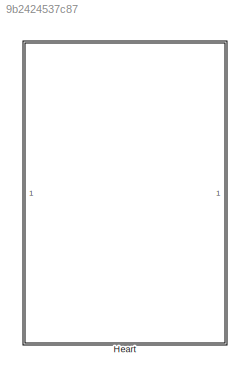
MODEL slx_9b2424537c87
KIND model
CONFIG AbsTol = auto
CONFIG EnableMultiTasking = off
CONFIG FixedStep = auto
CONFIG MaxStep = auto
CONFIG MinStep = auto
CONFIG RelTol = 1e-3
CONFIG SampleTimeConstraint = Unconstrained
CONFIG SolverName = VariableStepAuto
CONFIG StartTime = 0.0
CONFIG StopTime = 10.0
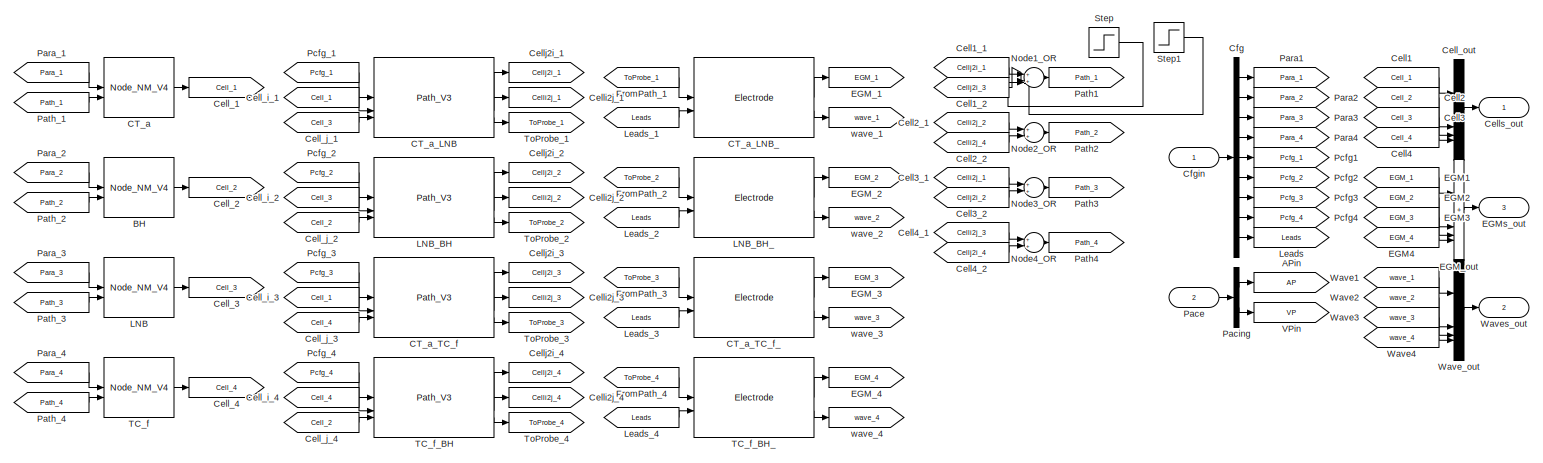
[diagram: Heart - part 1/2, full width, top band]
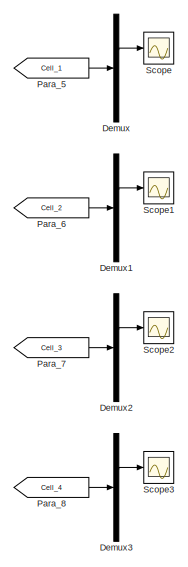
[diagram: Heart - part 2/2, bottom left region]
BLOCK [SubSystem] Heart
BLOCK [Goto] Heart/APin
  GotoTag = AP
BLOCK [Reference] Heart/BH  REF=Libs/Node_NM_V4
  SourceBlock = Libs/Node_NM_V4
  SourceType = SubSystem
BLOCK [Reference] Heart/CT_a  REF=Libs/Node_NM_V4
  SourceBlock = Libs/Node_NM_V4
  SourceType = SubSystem
BLOCK [Reference] Heart/CT_a_LNB  REF=Libs/Path_V3
  SourceBlock = Libs/Path_V3
  SourceType = SubSystem
BLOCK [Reference] Heart/CT_a_LNB_  REF=Libs/Electrode
  SourceBlock = Libs/Electrode
  SourceType = SubSystem
BLOCK [Reference] Heart/CT_a_TC_f  REF=Libs/Path_V3
  SourceBlock = Libs/Path_V3
  SourceType = SubSystem
BLOCK [Reference] Heart/CT_a_TC_f_  REF=Libs/Electrode
  SourceBlock = Libs/Electrode
  SourceType = SubSystem
BLOCK [From] Heart/Cell1
  GotoTag = Cell_1
BLOCK [From] Heart/Cell1_1
  GotoTag = Cellj2i_1
BLOCK [From] Heart/Cell1_2
  GotoTag = Cellj2i_3
BLOCK [From] Heart/Cell2
  GotoTag = Cell_2
BLOCK [From] Heart/Cell2_1
  GotoTag = Celli2j_2
BLOCK [From] Heart/Cell2_2
  GotoTag = Celli2j_4
BLOCK [From] Heart/Cell3
  GotoTag = Cell_3
BLOCK [From] Heart/Cell3_1
  GotoTag = Celli2j_1
BLOCK [From] Heart/Cell3_2
  GotoTag = Cellj2i_2
BLOCK [From] Heart/Cell4
  GotoTag = Cell_4
BLOCK [From] Heart/Cell4_1
  GotoTag = Celli2j_3
BLOCK [From] Heart/Cell4_2
  GotoTag = Cellj2i_4
BLOCK [Goto] Heart/Cell_1
  GotoTag = Cell_1
BLOCK [Goto] Heart/Cell_2
  GotoTag = Cell_2
BLOCK [Goto] Heart/Cell_3
  GotoTag = Cell_3
BLOCK [Goto] Heart/Cell_4
  GotoTag = Cell_4
BLOCK [From] Heart/Cell_i_1
  GotoTag = Cell_1
BLOCK [From] Heart/Cell_i_2
  GotoTag = Cell_3
BLOCK [From] Heart/Cell_i_3
  GotoTag = Cell_1
BLOCK [From] Heart/Cell_i_4
  GotoTag = Cell_4
BLOCK [From] Heart/Cell_j_1
  GotoTag = Cell_3
BLOCK [From] Heart/Cell_j_2
  GotoTag = Cell_2
BLOCK [From] Heart/Cell_j_3
  GotoTag = Cell_4
BLOCK [From] Heart/Cell_j_4
  GotoTag = Cell_2
BLOCK [Mux] Heart/Cell_out
  DisplayOption = bar
BLOCK [Goto] Heart/Celli2j_1
  GotoTag = Celli2j_1
BLOCK [Goto] Heart/Celli2j_2
  GotoTag = Celli2j_2
BLOCK [Goto] Heart/Celli2j_3
  GotoTag = Celli2j_3
BLOCK [Goto] Heart/Celli2j_4
  GotoTag = Celli2j_4
BLOCK [Goto] Heart/Cellj2i_1
  GotoTag = Cellj2i_1
BLOCK [Goto] Heart/Cellj2i_2
  GotoTag = Cellj2i_2
BLOCK [Goto] Heart/Cellj2i_3
  GotoTag = Cellj2i_3
BLOCK [Goto] Heart/Cellj2i_4
  GotoTag = Cellj2i_4
BLOCK [Outport] Heart/Cells_out
BLOCK [Demux] Heart/Cfg
  Outputs = [23,50,50,50,11,11,11,11,28]
BLOCK [Inport] Heart/Cfgin
BLOCK [Demux] Heart/Demux
  Outputs = 5
BLOCK [Demux] Heart/Demux1
  Outputs = 5
BLOCK [Demux] Heart/Demux2
  Outputs = 5
BLOCK [Demux] Heart/Demux3
  Outputs = 5
BLOCK [From] Heart/EGM1
  GotoTag = EGM_1
BLOCK [From] Heart/EGM2
  GotoTag = EGM_2
BLOCK [From] Heart/EGM3
  GotoTag = EGM_3
BLOCK [From] Heart/EGM4
  GotoTag = EGM_4
BLOCK [Goto] Heart/EGM_1
  GotoTag = EGM_1
BLOCK [Goto] Heart/EGM_2
  GotoTag = EGM_2
BLOCK [Goto] Heart/EGM_3
  GotoTag = EGM_3
BLOCK [Goto] Heart/EGM_4
  GotoTag = EGM_4
BLOCK [Sum] Heart/EGM_out
  IconShape = rectangular
  Inputs = 4
BLOCK [Outport] Heart/EGMs_out
  Port = 3
BLOCK [From] Heart/FromPath_1
  GotoTag = ToProbe_1
BLOCK [From] Heart/FromPath_2
  GotoTag = ToProbe_2
BLOCK [From] Heart/FromPath_3
  GotoTag = ToProbe_3
BLOCK [From] Heart/FromPath_4
  GotoTag = ToProbe_4
BLOCK [Reference] Heart/LNB  REF=Libs/Node_NM_V4
  SourceBlock = Libs/Node_NM_V4
  SourceType = SubSystem
BLOCK [Reference] Heart/LNB_BH  REF=Libs/Path_V3
  SourceBlock = Libs/Path_V3
  SourceType = SubSystem
BLOCK [Reference] Heart/LNB_BH_  REF=Libs/Electrode
  SourceBlock = Libs/Electrode
  SourceType = SubSystem
BLOCK [Goto] Heart/Leads
  GotoTag = Leads
BLOCK [From] Heart/Leads_1
  GotoTag = Leads
BLOCK [From] Heart/Leads_2
  GotoTag = Leads
BLOCK [From] Heart/Leads_3
  GotoTag = Leads
BLOCK [From] Heart/Leads_4
  GotoTag = Leads
BLOCK [Sum] Heart/Node1_OR
  Inputs = 4
BLOCK [Sum] Heart/Node2_OR
  Inputs = 2
BLOCK [Sum] Heart/Node3_OR
  Inputs = 2
BLOCK [Sum] Heart/Node4_OR
  Inputs = 2
BLOCK [Inport] Heart/Pace
  Port = 2
BLOCK [Demux] Heart/Pacing
  Outputs = 2
BLOCK [Goto] Heart/Para1
  GotoTag = Para_1
BLOCK [Goto] Heart/Para2
  GotoTag = Para_2
BLOCK [Goto] Heart/Para3
  GotoTag = Para_3
BLOCK [Goto] Heart/Para4
  GotoTag = Para_4
BLOCK [From] Heart/Para_1
  GotoTag = Para_1
BLOCK [From] Heart/Para_2
  GotoTag = Para_2
BLOCK [From] Heart/Para_3
  GotoTag = Para_3
BLOCK [From] Heart/Para_4
  GotoTag = Para_4
BLOCK [From] Heart/Para_5
  GotoTag = Cell_1
BLOCK [From] Heart/Para_6
  GotoTag = Cell_2
BLOCK [From] Heart/Para_7
  GotoTag = Cell_3
BLOCK [From] Heart/Para_8
  GotoTag = Cell_4
BLOCK [Goto] Heart/Path1
  GotoTag = Path_1
BLOCK [Goto] Heart/Path2
  GotoTag = Path_2
BLOCK [Goto] Heart/Path3
  GotoTag = Path_3
BLOCK [Goto] Heart/Path4
  GotoTag = Path_4
BLOCK [From] Heart/Path_1
  GotoTag = Path_1
BLOCK [From] Heart/Path_2
  GotoTag = Path_2
BLOCK [From] Heart/Path_3
  GotoTag = Path_3
BLOCK [From] Heart/Path_4
  GotoTag = Path_4
BLOCK [Goto] Heart/Pcfg1
  GotoTag = Pcfg_1
BLOCK [Goto] Heart/Pcfg2
  GotoTag = Pcfg_2
BLOCK [Goto] Heart/Pcfg3
  GotoTag = Pcfg_3
BLOCK [Goto] Heart/Pcfg4
  GotoTag = Pcfg_4
BLOCK [From] Heart/Pcfg_1
  GotoTag = Pcfg_1
BLOCK [From] Heart/Pcfg_2
  GotoTag = Pcfg_2
BLOCK [From] Heart/Pcfg_3
  GotoTag = Pcfg_3
BLOCK [From] Heart/Pcfg_4
  GotoTag = Pcfg_4
BLOCK [Scope] Heart/Scope
  ActiveDisplayYMaximum = 126.50357825746536
  ActiveDisplayYMinimum = -14.055953139718371
  DataLogging = on
  Floating = off
  GraphicalSettings = {"Style":{"BackgroundColor":[0.12941176470588237,0.12941176470588237,0.12941176470588237],"AxesColor":[0.07058823529411765,0.07058823529411765,0.07058823529411765],"LabelsColor":[0.8509803921568627,0.8509803921568627,0.8509803921568627],"PreserveColors":false,"Visible":[true],"LineStyle":["-"],"LineWidth":[1.5],"BarWidth":[0.9],"LineColor":["auto"],"LineFaceAlpha":[1],"LineEdgeAlpha":[1],"Marker":...<+1996ch>
  MultipleDisplayCache = [{"MaxYLimMag":126.50357825746536,"MaxYLimReal":126.50357825746536,"MinYLimMag":0,"MinYLimReal":-14.055953139718371,"PlotAsMagnitudePhase":false,"ShowGrid":true,"ShowLegend":false,"Title":"%<SignalLabel>","YLabel":""}]
  NumInputPorts = 1
  ScopeFrameLocation = window
  WasSavedAsWebScope = on
  WindowPosition = [2.000000,536.000000,851.000000,502.000000,]
BLOCK [Scope] Heart/Scope1
  ActiveDisplayYMaximum = 147.48749999999998
  ActiveDisplayYMinimum = -16.387499999999996
  DataLogging = on
  DataLoggingVariableName = ScopeData1
  Floating = off
  GraphicalSettings = {"Style":{"BackgroundColor":[0.12941176470588237,0.12941176470588237,0.12941176470588237],"AxesColor":[0.07058823529411765,0.07058823529411765,0.07058823529411765],"LabelsColor":[0.8509803921568627,0.8509803921568627,0.8509803921568627],"PreserveColors":false,"Visible":[true],"LineStyle":["-"],"LineWidth":[1.5],"BarWidth":[0.9],"LineColor":["auto"],"LineFaceAlpha":[1],"LineEdgeAlpha":[1],"Marker":...<+2001ch>
  MultipleDisplayCache = [{"MaxYLimMag":147.48749999999998,"MaxYLimReal":147.48749999999998,"MinYLimMag":0,"MinYLimReal":-16.387499999999996,"PlotAsMagnitudePhase":false,"ShowGrid":true,"ShowLegend":false,"Title":"%<SignalLabel>","YLabel":""}]
  NumInputPorts = 1
  ScopeFrameLocation = window
  WasSavedAsWebScope = on
  WindowPosition = [856.000000,2.000000,851.000000,502.000000,]
BLOCK [Scope] Heart/Scope2
  ActiveDisplayYMaximum = 147.48749999999998
  ActiveDisplayYMinimum = -16.387499999999996
  DataLogging = on
  DataLoggingVariableName = ScopeData2
  Floating = off
  GraphicalSettings = {"Style":{"BackgroundColor":[0.12941176470588237,0.12941176470588237,0.12941176470588237],"AxesColor":[0.07058823529411765,0.07058823529411765,0.07058823529411765],"LabelsColor":[0.8509803921568627,0.8509803921568627,0.8509803921568627],"PreserveColors":false,"Visible":[true],"LineStyle":["-"],"LineWidth":[1.5],"BarWidth":[0.9],"LineColor":["auto"],"LineFaceAlpha":[1],"LineEdgeAlpha":[1],"Marker":...<+2000ch>
  MultipleDisplayCache = [{"MaxYLimMag":147.48749999999998,"MaxYLimReal":147.48749999999998,"MinYLimMag":0,"MinYLimReal":-16.387499999999996,"PlotAsMagnitudePhase":false,"ShowGrid":true,"ShowLegend":false,"Title":"%<SignalLabel>","YLabel":""}]
  NumInputPorts = 1
  ScopeFrameLocation = window
  WasSavedAsWebScope = on
  WindowPosition = [2.000000,2.000000,851.000000,502.000000,]
BLOCK [Scope] Heart/Scope3
  ActiveDisplayYMaximum = 126.50357825746536
  ActiveDisplayYMinimum = -14.055953139718371
  DataLogging = on
  DataLoggingVariableName = ScopeData3
  Floating = off
  GraphicalSettings = {"Style":{"BackgroundColor":[0.12941176470588237,0.12941176470588237,0.12941176470588237],"AxesColor":[0.07058823529411765,0.07058823529411765,0.07058823529411765],"LabelsColor":[0.8509803921568627,0.8509803921568627,0.8509803921568627],"PreserveColors":false,"Visible":[true],"LineStyle":["-"],"LineWidth":[1.5],"BarWidth":[0.9],"LineColor":["auto"],"LineFaceAlpha":[1],"LineEdgeAlpha":[1],"Marker":...<+1998ch>
  MultipleDisplayCache = [{"MaxYLimMag":126.50357825746536,"MaxYLimReal":126.50357825746536,"MinYLimMag":0,"MinYLimReal":-14.055953139718371,"PlotAsMagnitudePhase":false,"ShowGrid":true,"ShowLegend":false,"Title":"%<SignalLabel>","YLabel":""}]
  NumInputPorts = 1
  ScopeFrameLocation = window
  WasSavedAsWebScope = on
  WindowPosition = [856.000000,536.000000,851.000000,502.000000,]
BLOCK [Step] Heart/Step
  After = 120
  SampleTime = 0
  Time = 3.32
BLOCK [Step] Heart/Step1
  After = -120
  SampleTime = 0
  Time = 3.36
BLOCK [Reference] Heart/TC_f  REF=Libs/Node_NM_V4
  SourceBlock = Libs/Node_NM_V4
  SourceType = SubSystem
BLOCK [Reference] Heart/TC_f_BH  REF=Libs/Path_V3
  SourceBlock = Libs/Path_V3
  SourceType = SubSystem
BLOCK [Reference] Heart/TC_f_BH_  REF=Libs/Electrode
  SourceBlock = Libs/Electrode
  SourceType = SubSystem
BLOCK [Goto] Heart/ToProbe_1
  GotoTag = ToProbe_1
BLOCK [Goto] Heart/ToProbe_2
  GotoTag = ToProbe_2
BLOCK [Goto] Heart/ToProbe_3
  GotoTag = ToProbe_3
BLOCK [Goto] Heart/ToProbe_4
  GotoTag = ToProbe_4
BLOCK [Goto] Heart/VPin
  GotoTag = VP
BLOCK [From] Heart/Wave1
  GotoTag = wave_1
BLOCK [From] Heart/Wave2
  GotoTag = wave_2
BLOCK [From] Heart/Wave3
  GotoTag = wave_3
BLOCK [From] Heart/Wave4
  GotoTag = wave_4
BLOCK [Mux] Heart/Wave_out
  DisplayOption = bar
BLOCK [Outport] Heart/Waves_out
  Port = 2
BLOCK [Goto] Heart/wave_1
  GotoTag = wave_1
BLOCK [Goto] Heart/wave_2
  GotoTag = wave_2
BLOCK [Goto] Heart/wave_3
  GotoTag = wave_3
BLOCK [Goto] Heart/wave_4
  GotoTag = wave_4
LINE Heart/BH:1 -> Heart/Cell_2:1
LINE Heart/CT_a:1 -> Heart/Cell_1:1
LINE Heart/CT_a_LNB:1 -> Heart/Cellj2i_1:1
LINE Heart/CT_a_LNB:2 -> Heart/Celli2j_1:1
LINE Heart/CT_a_LNB:3 -> Heart/ToProbe_1:1
LINE Heart/CT_a_LNB_:1 -> Heart/EGM_1:1
LINE Heart/CT_a_LNB_:2 -> Heart/wave_1:1
LINE Heart/CT_a_TC_f:1 -> Heart/Cellj2i_3:1
LINE Heart/CT_a_TC_f:2 -> Heart/Celli2j_3:1
LINE Heart/CT_a_TC_f:3 -> Heart/ToProbe_3:1
LINE Heart/CT_a_TC_f_:1 -> Heart/EGM_3:1
LINE Heart/CT_a_TC_f_:2 -> Heart/wave_3:1
LINE Heart/Cell1:1 -> Heart/Cell_out:1
LINE Heart/Cell1_1:1 -> Heart/Node1_OR:1
LINE Heart/Cell1_2:1 -> Heart/Node1_OR:2
LINE Heart/Cell2:1 -> Heart/Cell_out:2
LINE Heart/Cell2_1:1 -> Heart/Node2_OR:1
LINE Heart/Cell2_2:1 -> Heart/Node2_OR:2
LINE Heart/Cell3:1 -> Heart/Cell_out:3
LINE Heart/Cell3_1:1 -> Heart/Node3_OR:1
LINE Heart/Cell3_2:1 -> Heart/Node3_OR:2
LINE Heart/Cell4:1 -> Heart/Cell_out:4
LINE Heart/Cell4_1:1 -> Heart/Node4_OR:1
LINE Heart/Cell4_2:1 -> Heart/Node4_OR:2
LINE Heart/Cell_i_1:1 -> Heart/CT_a_LNB:2
LINE Heart/Cell_i_2:1 -> Heart/LNB_BH:2
LINE Heart/Cell_i_3:1 -> Heart/CT_a_TC_f:2
LINE Heart/Cell_i_4:1 -> Heart/TC_f_BH:2
LINE Heart/Cell_j_1:1 -> Heart/CT_a_LNB:3
LINE Heart/Cell_j_2:1 -> Heart/LNB_BH:3
LINE Heart/Cell_j_3:1 -> Heart/CT_a_TC_f:3
LINE Heart/Cell_j_4:1 -> Heart/TC_f_BH:3
LINE Heart/Cell_out:1 -> Heart/Cells_out:1
LINE Heart/Cfg:1 -> Heart/Para1:1
LINE Heart/Cfg:2 -> Heart/Para2:1
LINE Heart/Cfg:3 -> Heart/Para3:1
LINE Heart/Cfg:4 -> Heart/Para4:1
LINE Heart/Cfg:5 -> Heart/Pcfg1:1
LINE Heart/Cfg:6 -> Heart/Pcfg2:1
LINE Heart/Cfg:7 -> Heart/Pcfg3:1
LINE Heart/Cfg:8 -> Heart/Pcfg4:1
LINE Heart/Cfg:9 -> Heart/Leads:1
LINE Heart/Cfgin:1 -> Heart/Cfg:1
LINE Heart/Demux1:2 -> Heart/Scope1:1
LINE Heart/Demux2:2 -> Heart/Scope2:1
LINE Heart/Demux3:2 -> Heart/Scope3:1
LINE Heart/Demux:2 -> Heart/Scope:1
LINE Heart/EGM1:1 -> Heart/EGM_out:1
LINE Heart/EGM2:1 -> Heart/EGM_out:2
LINE Heart/EGM3:1 -> Heart/EGM_out:3
LINE Heart/EGM4:1 -> Heart/EGM_out:4
LINE Heart/EGM_out:1 -> Heart/EGMs_out:1
LINE Heart/FromPath_1:1 -> Heart/CT_a_LNB_:1
LINE Heart/FromPath_2:1 -> Heart/LNB_BH_:1
LINE Heart/FromPath_3:1 -> Heart/CT_a_TC_f_:1
LINE Heart/FromPath_4:1 -> Heart/TC_f_BH_:1
LINE Heart/LNB:1 -> Heart/Cell_3:1
LINE Heart/LNB_BH:1 -> Heart/Cellj2i_2:1
LINE Heart/LNB_BH:2 -> Heart/Celli2j_2:1
LINE Heart/LNB_BH:3 -> Heart/ToProbe_2:1
LINE Heart/LNB_BH_:1 -> Heart/EGM_2:1
LINE Heart/LNB_BH_:2 -> Heart/wave_2:1
LINE Heart/Leads_1:1 -> Heart/CT_a_LNB_:2
LINE Heart/Leads_2:1 -> Heart/LNB_BH_:2
LINE Heart/Leads_3:1 -> Heart/CT_a_TC_f_:2
LINE Heart/Leads_4:1 -> Heart/TC_f_BH_:2
LINE Heart/Node1_OR:1 -> Heart/Path1:1
LINE Heart/Node2_OR:1 -> Heart/Path2:1
LINE Heart/Node3_OR:1 -> Heart/Path3:1
LINE Heart/Node4_OR:1 -> Heart/Path4:1
LINE Heart/Pace:1 -> Heart/Pacing:1
LINE Heart/Pacing:1 -> Heart/APin:1
LINE Heart/Pacing:2 -> Heart/VPin:1
LINE Heart/Para_1:1 -> Heart/CT_a:1
LINE Heart/Para_2:1 -> Heart/BH:1
LINE Heart/Para_3:1 -> Heart/LNB:1
LINE Heart/Para_4:1 -> Heart/TC_f:1
LINE Heart/Para_5:1 -> Heart/Demux:1
LINE Heart/Para_6:1 -> Heart/Demux1:1
LINE Heart/Para_7:1 -> Heart/Demux2:1
LINE Heart/Para_8:1 -> Heart/Demux3:1
LINE Heart/Path_1:1 -> Heart/CT_a:2
LINE Heart/Path_2:1 -> Heart/BH:2
LINE Heart/Path_3:1 -> Heart/LNB:2
LINE Heart/Path_4:1 -> Heart/TC_f:2
LINE Heart/Pcfg_1:1 -> Heart/CT_a_LNB:1
LINE Heart/Pcfg_2:1 -> Heart/LNB_BH:1
LINE Heart/Pcfg_3:1 -> Heart/CT_a_TC_f:1
LINE Heart/Pcfg_4:1 -> Heart/TC_f_BH:1
LINE Heart/Step1:1 -> Heart/Node1_OR:4
LINE Heart/Step:1 -> Heart/Node1_OR:3
LINE Heart/TC_f:1 -> Heart/Cell_4:1
LINE Heart/TC_f_BH:1 -> Heart/Cellj2i_4:1
LINE Heart/TC_f_BH:2 -> Heart/Celli2j_4:1
LINE Heart/TC_f_BH:3 -> Heart/ToProbe_4:1
LINE Heart/TC_f_BH_:1 -> Heart/EGM_4:1
LINE Heart/TC_f_BH_:2 -> Heart/wave_4:1
LINE Heart/Wave1:1 -> Heart/Wave_out:1
LINE Heart/Wave2:1 -> Heart/Wave_out:2
LINE Heart/Wave3:1 -> Heart/Wave_out:3
LINE Heart/Wave4:1 -> Heart/Wave_out:4
LINE Heart/Wave_out:1 -> Heart/Waves_out:1
